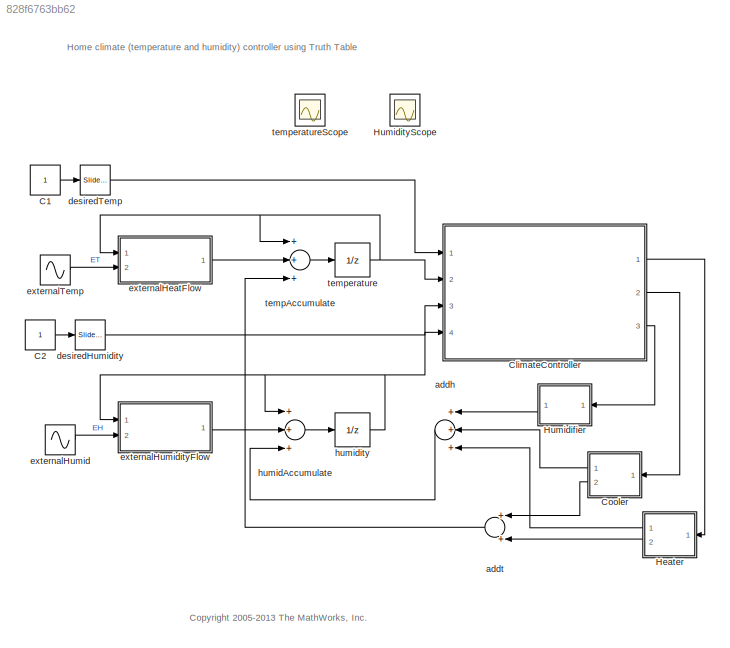
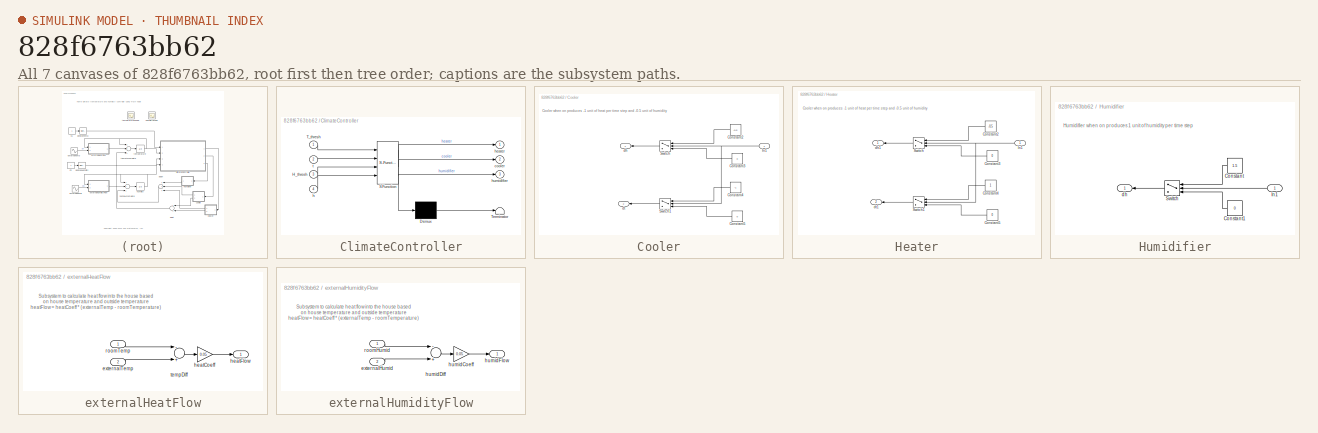
[diagram: thumbnail index - all 7 canvases of the model, root first then tree order]
MODEL slx_828f6763bb62
KIND model
CONFIG AbsTol = auto
CONFIG EnableMultiTasking = on
CONFIG FixedStep = 1
CONFIG MaxStep = auto
CONFIG MinStep = auto
CONFIG RelTol = 1e-3
CONFIG SampleTimeConstraint = Unconstrained
CONFIG Solver = FixedStepDiscrete
CONFIG SolverName = FixedStepDiscrete
CONFIG StartTime = 0.0
CONFIG StopTime = inf
WORKSPACE source: MAT-file member
WORKSPACE H_tol = 3
WORKSPACE T_tol = 2
BLOCK [Constant] C1
BLOCK [Constant] C2
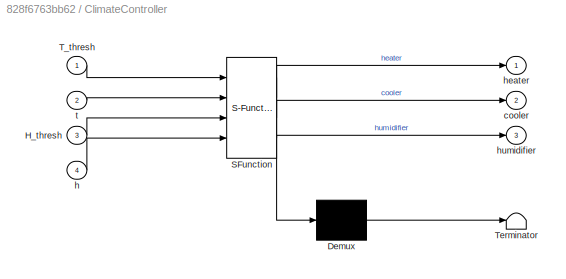
BLOCK [SubSystem] ClimateController
  ErrorFcn = Stateflow.Translate.translate
  PermitHierarchicalResolution = ExplicitOnly
  Ports = [4, 3]
  RequestExecContextInheritance = off
  SFBlockType = Truth Table
  TreatAsAtomicUnit = on
  Variant = off
BLOCK [Demux] ClimateController/ Demux 
  Outputs = 1
  Ports = [1, 1]
BLOCK [S-Function] ClimateController/ SFunction 
  EnableBusSupport = off
  FunctionName = sf_sfun
  Parameters = H_tol,T_tol
  PortCounts = [4 4]
  Ports = [4, 4]
  SFcnIsStateOwnerBlock = off
  SFunctionDeploymentMode = off
  Tag = Stateflow S-Function sf_climate_control 2
BLOCK [Terminator] ClimateController/ Terminator 
BLOCK [Inport] ClimateController/H_thresh
  IconDisplay = Port number
  Port = 3
BLOCK [Inport] ClimateController/T_thresh
  IconDisplay = Port number
BLOCK [Outport] ClimateController/cooler
  IconDisplay = Port number
  Port = 2
BLOCK [Inport] ClimateController/h
  IconDisplay = Port number
  Port = 4
BLOCK [Outport] ClimateController/heater
  IconDisplay = Port number
BLOCK [Outport] ClimateController/humidifier
  IconDisplay = Port number
  Port = 3
BLOCK [Inport] ClimateController/t
  IconDisplay = Port number
  Port = 2
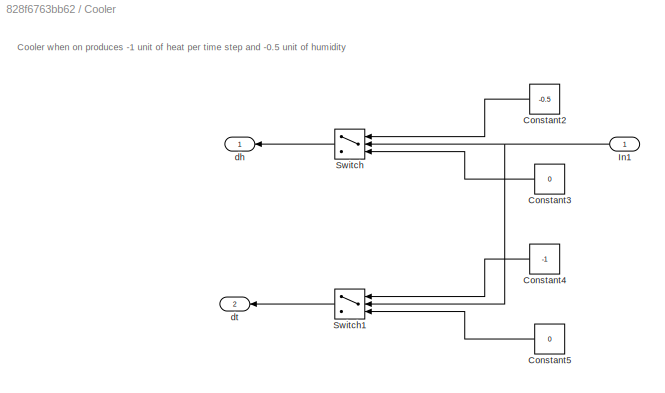
BLOCK [SubSystem] Cooler
  Ports = [1, 2]
  RequestExecContextInheritance = off
  TreatAsAtomicUnit = on
  Variant = off
BLOCK [Constant] Cooler/Constant2
  Value = -0.5
BLOCK [Constant] Cooler/Constant3
  Value = 0
BLOCK [Constant] Cooler/Constant4
  Value = -1
BLOCK [Constant] Cooler/Constant5
  Value = 0
BLOCK [Inport] Cooler/In1
  IconDisplay = Port number
BLOCK [Switch] Cooler/Switch
  InputSameDT = off
  SaturateOnIntegerOverflow = off
  Threshold = 0.5
BLOCK [Switch] Cooler/Switch1
  InputSameDT = off
  SaturateOnIntegerOverflow = off
  Threshold = 0.5
BLOCK [Outport] Cooler/dh
  IconDisplay = Port number
  InitialOutput = 0
BLOCK [Outport] Cooler/dt
  IconDisplay = Port number
  InitialOutput = 0
  Port = 2
BLOCK [SubSystem] Heater
  Ports = [1, 2]
  RequestExecContextInheritance = off
  TreatAsAtomicUnit = on
  Variant = off
BLOCK [Constant] Heater/Constant2
  Value = -0.5
BLOCK [Constant] Heater/Constant3
  Value = 0
BLOCK [Constant] Heater/Constant4
BLOCK [Constant] Heater/Constant5
  Value = 0
BLOCK [Inport] Heater/In1
  IconDisplay = Port number
BLOCK [Switch] Heater/Switch
  InputSameDT = off
  SaturateOnIntegerOverflow = off
  Threshold = 0.5
BLOCK [Switch] Heater/Switch1
  InputSameDT = off
  SaturateOnIntegerOverflow = off
  Threshold = 0.5
BLOCK [Outport] Heater/dh1
  IconDisplay = Port number
  InitialOutput = 0
BLOCK [Outport] Heater/dt1
  IconDisplay = Port number
  InitialOutput = 0
  Port = 2
BLOCK [SubSystem] Humidifier
  Ports = [1, 1]
  RequestExecContextInheritance = off
  TreatAsAtomicUnit = on
  Variant = off
BLOCK [Constant] Humidifier/Constant
  Value = 1.5
BLOCK [Constant] Humidifier/Constant1
  Value = 0
BLOCK [Inport] Humidifier/In1
  IconDisplay = Port number
BLOCK [Switch] Humidifier/Switch
  InputSameDT = off
  SaturateOnIntegerOverflow = off
  Threshold = 0.5
BLOCK [Outport] Humidifier/dh
  IconDisplay = Port number
  InitialOutput = 0
  OutDataTypeStr = double
BLOCK [Scope] HumidityScope
  Floating = on
  NumInputPorts = 1
  Ports = []
  ScopeSpecificationString = Simulink.scopes.TimeScopeBlockCfg('CurrentConfiguration', extmgr.ConfigurationSet(extmgr.Configuration('Core','General UI',true),extmgr.Configuration('Core','Source UI',true),extmgr.Configuration('Sources','WiredSimulink',true,'DataLoggingSaveFormat','StructureWithTime'),extmgr.Configuration('Visuals','Time Domain',true,'SerializedDisplays',{struct('MinYLimReal','27.5','MaxYLimReal','50','YLabelRe...<+1737ch>
BLOCK [Sum] addh
  InputSameDT = off
  Inputs = +++
  OutDataTypeStr = Inherit: Inherit via internal rule
  Ports = [3, 1]
  SaturateOnIntegerOverflow = off
BLOCK [Sum] addt
  InputSameDT = off
  OutDataTypeStr = Inherit: Inherit via internal rule
  Ports = [2, 1]
  SaturateOnIntegerOverflow = off
BLOCK [Reference] desiredHumidity  REF=simulink/Math
Operations/Slider
Gain
  Ports = [1, 1]
  SourceBlock = simulink/Math\nOperations/Slider\nGain
  SourceProductBaseCode = SL
  SourceProductName = Simulink
  SourceType = Slider Gain
BLOCK [Reference] desiredTemp  REF=simulink/Math
Operations/Slider
Gain
  Ports = [1, 1]
  SourceBlock = simulink/Math\nOperations/Slider\nGain
  SourceProductBaseCode = SL
  SourceProductName = Simulink
  SourceType = Slider Gain
BLOCK [SubSystem] externalHeatFlow
  Ports = [2, 1]
  RequestExecContextInheritance = off
  TreatAsAtomicUnit = on
  Variant = off
BLOCK [Inport] externalHeatFlow/externalTemp
  IconDisplay = Port number
  Port = 2
BLOCK [Gain] externalHeatFlow/heatCoeff
  Gain = 0.05
  OutDataTypeStr = Inherit: Inherit via internal rule
  ParamDataTypeStr = Inherit: Inherit via internal rule
  SaturateOnIntegerOverflow = off
BLOCK [Outport] externalHeatFlow/heatFlow
  IconDisplay = Port number
  InitialOutput = 0
  OutDataTypeStr = double
BLOCK [Inport] externalHeatFlow/roomTemp
  IconDisplay = Port number
BLOCK [Sum] externalHeatFlow/tempDiff
  InputSameDT = off
  Inputs = -+
  OutDataTypeStr = Inherit: Inherit via internal rule
  Ports = [2, 1]
  SaturateOnIntegerOverflow = off
BLOCK [Sin] externalHumid
  Amplitude = 10
  Bias = 40
  Frequency = 1/(24*60)
  Ports = [0, 1]
  SampleTime = 1
BLOCK [SubSystem] externalHumidityFlow
  Ports = [2, 1]
  RequestExecContextInheritance = off
  TreatAsAtomicUnit = on
  Variant = off
BLOCK [Inport] externalHumidityFlow/externalHumid
  IconDisplay = Port number
  Port = 2
BLOCK [Gain] externalHumidityFlow/humidCoeff
  Gain = 0.05
  OutDataTypeStr = Inherit: Inherit via internal rule
  ParamDataTypeStr = Inherit: Inherit via internal rule
  SaturateOnIntegerOverflow = off
BLOCK [Sum] externalHumidityFlow/humidDiff
  InputSameDT = off
  Inputs = -+
  OutDataTypeStr = Inherit: Inherit via internal rule
  Ports = [2, 1]
  SaturateOnIntegerOverflow = off
BLOCK [Outport] externalHumidityFlow/humidFlow
  IconDisplay = Port number
  InitialOutput = 0
  OutDataTypeStr = double
BLOCK [Inport] externalHumidityFlow/roomHumid
  IconDisplay = Port number
BLOCK [Sin] externalTemp
  Amplitude = 10
  Bias = 70
  Frequency = 1/(24*60)
  Ports = [0, 1]
  SampleTime = 1
BLOCK [Sum] humidAccumulate
  InputSameDT = off
  Inputs = +++
  OutDataTypeStr = Inherit: Inherit via internal rule
  Ports = [3, 1]
  SaturateOnIntegerOverflow = off
BLOCK [UnitDelay] humidity
  InitialCondition = 50
BLOCK [Sum] tempAccumulate
  InputSameDT = off
  Inputs = +++
  OutDataTypeStr = Inherit: Inherit via internal rule
  Ports = [3, 1]
  SaturateOnIntegerOverflow = off
BLOCK [UnitDelay] temperature
  InitialCondition = 50
BLOCK [Scope] temperatureScope
  Floating = on
  NumInputPorts = 1
  Ports = []
  ScopeSpecificationString = Simulink.scopes.TimeScopeBlockCfg('CurrentConfiguration', extmgr.ConfigurationSet(extmgr.Configuration('Core','General UI',true),extmgr.Configuration('Core','Source UI',true),extmgr.Configuration('Sources','WiredSimulink',true,'DataLoggingVariableName','ScopeData2','DataLoggingSaveFormat','StructureWithTime'),extmgr.Configuration('Visuals','Time Domain',true,'SerializedDisplays',{struct('MinYLimRe...<+1772ch>
ANNOTATION (root): <copyright redacted>
ANNOTATION (root): Home climate (temperature and humidity) controller using Truth Table
ANNOTATION Cooler: Cooler when on produces -1 unit of heat per time step and -0.5 unit of humidity
ANNOTATION Heater: Cooler when on produces -1 unit of heat per time step and -0.5 unit of humidity
ANNOTATION Humidifier: Humidifier when on produces 1 unit of humidity per time step
ANNOTATION externalHeatFlow: Subsystem to calculate heat flow into the house based on house temperature and outside temperature heatFlow = heatCoeff * (externalTemp - roomTemperature)
ANNOTATION externalHumidityFlow: Subsystem to calculate heat flow into the house based on house temperature and outside temperature heatFlow = heatCoeff * (externalTemp - roomTemperature)
LINE C1:1 -> desiredTemp:1
LINE C2:1 -> desiredHumidity:1
LINE ClimateController:1 -> Heater:1
LINE ClimateController:2 -> Cooler:1
LINE ClimateController:3 -> Humidifier:1
LINE Cooler/Constant2:1 -> Cooler/Switch:1
LINE Cooler/Constant3:1 -> Cooler/Switch:3
LINE Cooler/Constant4:1 -> Cooler/Switch1:1
LINE Cooler/Constant5:1 -> Cooler/Switch1:3
NET Cooler/In1:1 -> Cooler/Switch1:2, Cooler/Switch:2
LINE Cooler/Switch1:1 -> Cooler/dt:1
LINE Cooler/Switch:1 -> Cooler/dh:1
LINE Cooler:1 -> addh:2
LINE Cooler:2 -> addt:1
LINE Heater/Constant2:1 -> Heater/Switch:1
LINE Heater/Constant3:1 -> Heater/Switch:3
LINE Heater/Constant4:1 -> Heater/Switch1:1
LINE Heater/Constant5:1 -> Heater/Switch1:3
NET Heater/In1:1 -> Heater/Switch1:2, Heater/Switch:2
LINE Heater/Switch1:1 -> Heater/dt1:1
LINE Heater/Switch:1 -> Heater/dh1:1
LINE Heater:1 -> addh:3
LINE Heater:2 -> addt:2
LINE Humidifier/Constant1:1 -> Humidifier/Switch:3
LINE Humidifier/Constant:1 -> Humidifier/Switch:1
LINE Humidifier/In1:1 -> Humidifier/Switch:2
LINE Humidifier/Switch:1 -> Humidifier/dh:1
LINE Humidifier:1 -> addh:1
LINE addh:1 -> humidAccumulate:3
LINE addt:1 -> tempAccumulate:3
LINE desiredHumidity:1 -> ClimateController:3
LINE desiredTemp:1 -> ClimateController:1
LINE externalHeatFlow/externalTemp:1 -> externalHeatFlow/tempDiff:2
LINE externalHeatFlow/heatCoeff:1 -> externalHeatFlow/heatFlow:1
LINE externalHeatFlow/roomTemp:1 -> externalHeatFlow/tempDiff:1
LINE externalHeatFlow/tempDiff:1 -> externalHeatFlow/heatCoeff:1
LINE externalHeatFlow:1 -> tempAccumulate:2
LINE externalHumid:1 -> externalHumidityFlow:2
LINE externalHumidityFlow/externalHumid:1 -> externalHumidityFlow/humidDiff:2
LINE externalHumidityFlow/humidCoeff:1 -> externalHumidityFlow/humidFlow:1
LINE externalHumidityFlow/humidDiff:1 -> externalHumidityFlow/humidCoeff:1
LINE externalHumidityFlow/roomHumid:1 -> externalHumidityFlow/humidDiff:1
LINE externalHumidityFlow:1 -> humidAccumulate:2
LINE externalTemp:1 -> externalHeatFlow:2
LINE humidAccumulate:1 -> humidity:1
NET humidity:1 -> ClimateController:4, externalHumidityFlow:1, humidAccumulate:1
LINE tempAccumulate:1 -> temperature:1
NET temperature:1 -> ClimateController:2, externalHeatFlow:1, tempAccumulate:1
note: NET lines group one-source signal fan-out (src -> all destinations, sorted); 1:1 wires keep LINE
CHART ClimateController states=1 transitions=1
  STATE_LABEL 'tt_blk_kernel'
  STATE_LABEL 'SCRIPT:\nfunction [heater, cooler, humidifier] = fcn(T_thresh, t, H_thresh, h, T_tol, H_tol)\n\naVarTruthTableCondition_1 = false;\naVarTruthTableCondition_2 = false;\n\n\n% Hot\n\naVarTruthTableCondition_1 = logical(t > T_thresh);\n\n% Dry\n\naVarTruthTableCondition_2 = logical(h < H_thresh);\n\nif (aVarTruthTableCondition_1 && aVarTruthTableCondition_2)\n    CoolOn();\n    HumidOn();\nelseif (aVarTruthTableCondit...<+404ch>'
